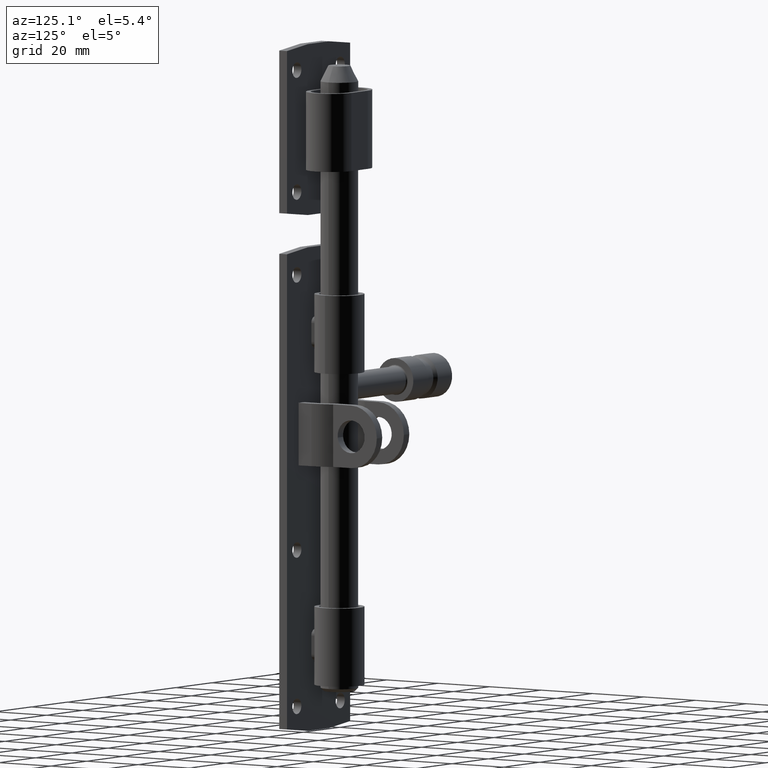
[diagram: clean part render]
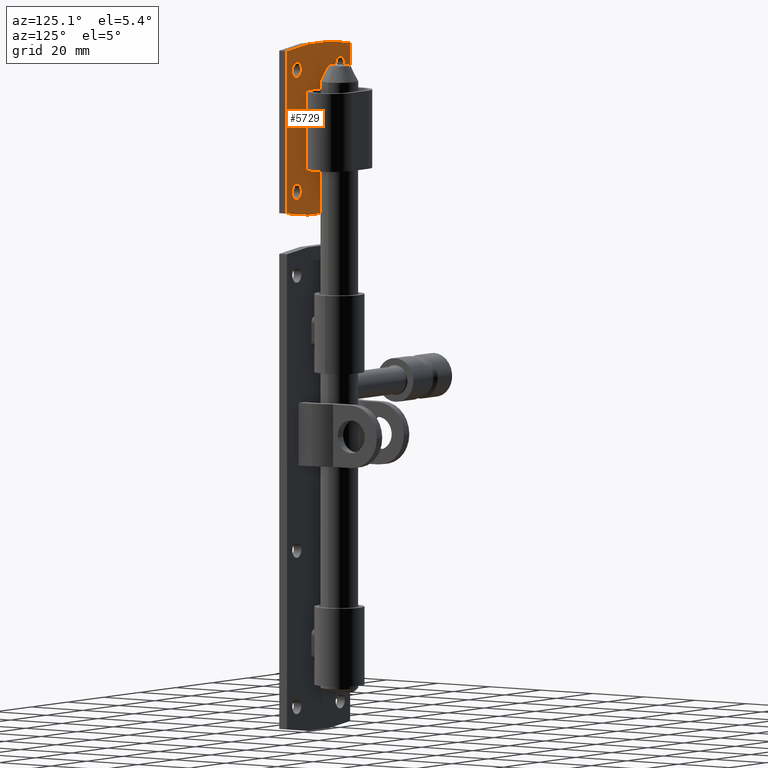
[diagram: same view with one face highlighted and labeled with its STEP entity id]
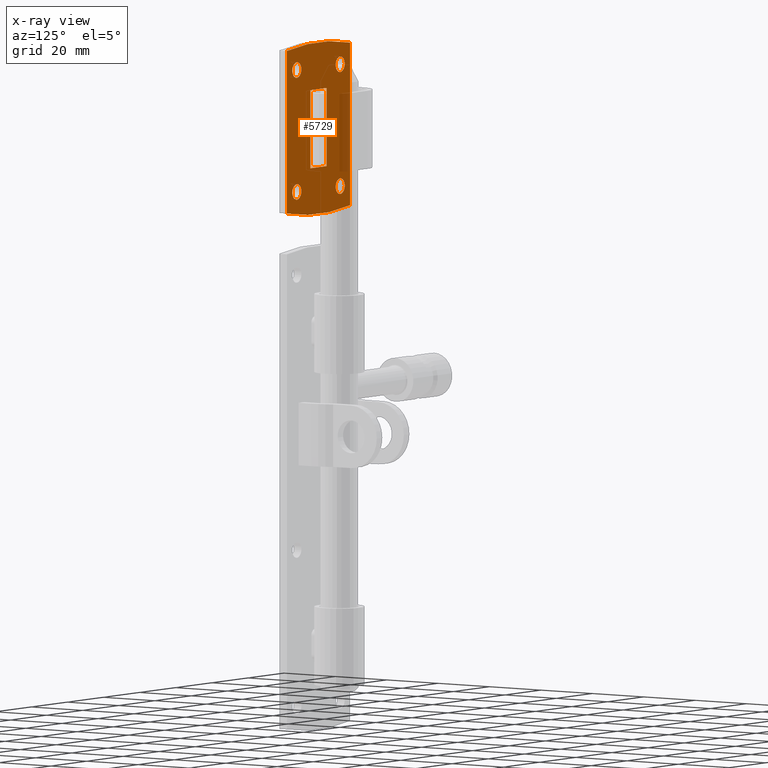
[diagram: x-ray of the same camera — body ghosted, the highlighted face saturated]
A machine part, auxiliary view. The second image highlights one B-rep face of the part: STEP entity #5729.
The next image is the same camera in x-ray: the body ghosted, the highlighted face saturated — about 9% of this face is hidden behind the body in this view.
In plain terms, the highlighted planar face has unit normal (0, 1, 0).
Its self-contained STEP definition (entity closure, byte-faithful):
#55 = LINE ( 'NONE', #9235, #5270 ) ;
#198 = CIRCLE ( 'NONE', #12664, 2.499999999999998668 ) ;
#412 = CIRCLE ( 'NONE', #959, 2.499999999999998668 ) ;
#470 = EDGE_CURVE ( 'NONE', #11358, #734, #3443, .T. ) ;
#541 = VECTOR ( 'NONE', #7025, 1000.000000000000000 ) ;
#582 = DIRECTION ( 'NONE',  ( 0.000000000000000000, 1.000000000000000000, 0.000000000000000000 ) ) ;
#620 = DIRECTION ( 'NONE',  ( -0.000000000000000000, -0.000000000000000000, 1.000000000000000000 ) ) ;
#703 = ORIENTED_EDGE ( 'NONE', *, *, #7101, .T. ) ;
#734 = VERTEX_POINT ( 'NONE', #4685 ) ;
#756 = VERTEX_POINT ( 'NONE', #1141 ) ;
#760 = CARTESIAN_POINT ( 'NONE',  ( 1.293649916984026240E-23, 3.000000000000000000, 75.33333333333378334 ) ) ;
#927 = FACE_OUTER_BOUND ( 'NONE', #3778, .T. ) ;
#930 = ORIENTED_EDGE ( 'NONE', *, *, #5429, .T. ) ;
#959 = AXIS2_PLACEMENT_3D ( 'NONE', #2879, #582, #8939 ) ;
#1005 = ORIENTED_EDGE ( 'NONE', *, *, #12646, .T. ) ;
#1127 = VERTEX_POINT ( 'NONE', #6780 ) ;
#1141 = CARTESIAN_POINT ( 'NONE',  ( 17.50000000000000000, 3.000000000000000000, 26.00000000000000355 ) ) ;
#1306 = FACE_BOUND ( 'NONE', #13496, .T. ) ;
#1493 = VERTEX_POINT ( 'NONE', #10224 ) ;
#1706 = VECTOR ( 'NONE', #620, 1000.000000000000000 ) ;
#1959 = EDGE_LOOP ( 'NONE', ( #703, #930, #10210, #7282 ) ) ;
#2009 = DIRECTION ( 'NONE',  ( 0.000000000000000000, 1.000000000000000000, 0.000000000000000000 ) ) ;
#2368 = EDGE_CURVE ( 'NONE', #756, #11358, #5472, .T. ) ;
#2510 = VERTEX_POINT ( 'NONE', #4077 ) ;
#2618 = ORIENTED_EDGE ( 'NONE', *, *, #14446, .F. ) ;
#2653 = VECTOR ( 'NONE', #8592, 1000.000000000000000 ) ;
#2740 = CARTESIAN_POINT ( 'NONE',  ( -17.50000000000000711, 3.000000000000000000, 25.99999999999999289 ) ) ;
#2815 = AXIS2_PLACEMENT_3D ( 'NONE', #760, #14934, #4259 ) ;
#2879 = CARTESIAN_POINT ( 'NONE',  ( 12.00000000000000533, 3.000000000000000000, 19.49999999999999645 ) ) ;
#3123 = EDGE_CURVE ( 'NONE', #14790, #3171, #55, .T. ) ;
#3171 = VERTEX_POINT ( 'NONE', #8514 ) ;
#3443 = CIRCLE ( 'NONE', #2815, 102.8333333333337691 ) ;
#3544 = CARTESIAN_POINT ( 'NONE',  ( -4.500000000000000888, 2.999999999999995559, 12.50000000000000000 ) ) ;
#3728 = VECTOR ( 'NONE', #5862, 1000.000000000000000 ) ;
#3778 = EDGE_LOOP ( 'NONE', ( #11028, #6084, #7305, #1005 ) ) ;
#4077 = CARTESIAN_POINT ( 'NONE',  ( -17.50000000000000711, 3.000000000000000000, 25.99999999999999289 ) ) ;
#4094 = FACE_BOUND ( 'NONE', #15298, .T. ) ;
#4098 = VERTEX_POINT ( 'NONE', #8999 ) ;
#4259 = DIRECTION ( 'NONE',  ( 0.000000000000000000, 0.000000000000000000, -1.000000000000000000 ) ) ;
#4374 = EDGE_CURVE ( 'NONE', #1493, #1493, #5632, .T. ) ;
#4423 = VERTEX_POINT ( 'NONE', #13186 ) ;
#4685 = CARTESIAN_POINT ( 'NONE',  ( -17.50000000000000711, 3.000000000000000000, -25.99999999999999289 ) ) ;
#4694 = AXIS2_PLACEMENT_3D ( 'NONE', #11875, #9586, #10726 ) ;
#4720 = CIRCLE ( 'NONE', #8078, 2.499999999999998668 ) ;
#4749 = EDGE_LOOP ( 'NONE', ( #5271 ) ) ;
#5270 = VECTOR ( 'NONE', #13973, 1000.000000000000000 ) ;
#5271 = ORIENTED_EDGE ( 'NONE', *, *, #12200, .F. ) ;
#5429 = EDGE_CURVE ( 'NONE', #11668, #3171, #7295, .T. ) ;
#5472 = LINE ( 'NONE', #13331, #2653 ) ;
#5632 = CIRCLE ( 'NONE', #4694, 2.499999999999998668 ) ;
#5665 = AXIS2_PLACEMENT_3D ( 'NONE', #10470, #13938, #11709 ) ;
#5729 = ADVANCED_FACE ( 'NONE', ( #10417, #11333, #8230, #1306, #4094, #927 ), #13844, .T. ) ;
#5862 = DIRECTION ( 'NONE',  ( 1.000000000000000000, 0.000000000000000000, 0.000000000000000000 ) ) ;
#6084 = ORIENTED_EDGE ( 'NONE', *, *, #2368, .T. ) ;
#6144 = DIRECTION ( 'NONE',  ( 0.000000000000000000, 1.000000000000000000, 0.000000000000000000 ) ) ;
#6646 = DIRECTION ( 'NONE',  ( 0.000000000000000000, 1.000000000000000000, 0.000000000000000000 ) ) ;
#6780 = CARTESIAN_POINT ( 'NONE',  ( 12.00000000000000533, 3.000000000000000000, 21.99999999999999645 ) ) ;
#7025 = DIRECTION ( 'NONE',  ( -0.000000000000000000, -0.000000000000000000, -1.000000000000000000 ) ) ;
#7082 = CARTESIAN_POINT ( 'NONE',  ( -4.500000000000000888, 2.999999999999995559, -12.50000000000000000 ) ) ;
#7101 = EDGE_CURVE ( 'NONE', #4423, #11668, #8235, .T. ) ;
#7282 = ORIENTED_EDGE ( 'NONE', *, *, #9234, .F. ) ;
#7295 = LINE ( 'NONE', #11799, #3728 ) ;
#7305 = ORIENTED_EDGE ( 'NONE', *, *, #470, .T. ) ;
#7341 = DIRECTION ( 'NONE',  ( 0.000000000000000000, 0.000000000000000000, 1.000000000000000000 ) ) ;
#7597 = ORIENTED_EDGE ( 'NONE', *, *, #11234, .F. ) ;
#7843 = CARTESIAN_POINT ( 'NONE',  ( 17.50000000000001421, 3.000000000000000000, -25.99999999999998224 ) ) ;
#7909 = CARTESIAN_POINT ( 'NONE',  ( 1.293649916984065325E-23, 3.000000000000000000, -75.33333333333378334 ) ) ;
#8073 = DIRECTION ( 'NONE',  ( 0.000000000000000000, -0.000000000000000000, 1.000000000000000000 ) ) ;
#8078 = AXIS2_PLACEMENT_3D ( 'NONE', #13235, #6144, #7341 ) ;
#8136 = LINE ( 'NONE', #11007, #13833 ) ;
#8230 = FACE_BOUND ( 'NONE', #8694, .T. ) ;
#8235 = LINE ( 'NONE', #3544, #541 ) ;
#8455 = LINE ( 'NONE', #2740, #1706 ) ;
#8514 = CARTESIAN_POINT ( 'NONE',  ( 4.499999999999999112, 2.999999999999995559, -12.50000000000000000 ) ) ;
#8592 = DIRECTION ( 'NONE',  ( -0.000000000000000000, -0.000000000000000000, -1.000000000000000000 ) ) ;
#8694 = EDGE_LOOP ( 'NONE', ( #2618 ) ) ;
#8939 = DIRECTION ( 'NONE',  ( 0.000000000000000000, 0.000000000000000000, 1.000000000000000000 ) ) ;
#8999 = CARTESIAN_POINT ( 'NONE',  ( -12.00000000000000178, 3.000000000000000000, -17.00000000000000000 ) ) ;
#9120 = EDGE_CURVE ( 'NONE', #2510, #756, #14671, .T. ) ;
#9234 = EDGE_CURVE ( 'NONE', #4423, #14790, #8136, .T. ) ;
#9235 = CARTESIAN_POINT ( 'NONE',  ( 4.499999999999999112, 2.999999999999995559, 12.50000000000000000 ) ) ;
#9586 = DIRECTION ( 'NONE',  ( 0.000000000000000000, 1.000000000000000000, 0.000000000000000000 ) ) ;
#9876 = AXIS2_PLACEMENT_3D ( 'NONE', #7909, #2009, #8073 ) ;
#10210 = ORIENTED_EDGE ( 'NONE', *, *, #3123, .F. ) ;
#10224 = CARTESIAN_POINT ( 'NONE',  ( -11.99999999999999645, 3.000000000000000000, 22.00000000000000000 ) ) ;
#10243 = CARTESIAN_POINT ( 'NONE',  ( 11.99999999999999822, 3.000000000000000000, -19.50000000000000355 ) ) ;
#10343 = DIRECTION ( 'NONE',  ( 0.000000000000000000, 0.000000000000000000, 1.000000000000000000 ) ) ;
#10417 = FACE_BOUND ( 'NONE', #1959, .T. ) ;
#10470 = CARTESIAN_POINT ( 'NONE',  ( 1.293649916984065325E-23, 3.000000000000000000, -75.33333333333378334 ) ) ;
#10726 = DIRECTION ( 'NONE',  ( 0.000000000000000000, 0.000000000000000000, 1.000000000000000000 ) ) ;
#11007 = CARTESIAN_POINT ( 'NONE',  ( -4.500000000000000888, 2.999999999999995559, 12.50000000000000000 ) ) ;
#11028 = ORIENTED_EDGE ( 'NONE', *, *, #9120, .T. ) ;
#11234 = EDGE_CURVE ( 'NONE', #1127, #1127, #412, .T. ) ;
#11333 = FACE_BOUND ( 'NONE', #4749, .T. ) ;
#11358 = VERTEX_POINT ( 'NONE', #7843 ) ;
#11668 = VERTEX_POINT ( 'NONE', #7082 ) ;
#11709 = DIRECTION ( 'NONE',  ( 0.000000000000000000, 0.000000000000000000, 1.000000000000000000 ) ) ;
#11799 = CARTESIAN_POINT ( 'NONE',  ( -4.500000000000000888, 2.999999999999995559, -12.50000000000000000 ) ) ;
#11875 = CARTESIAN_POINT ( 'NONE',  ( -11.99999999999999645, 3.000000000000000000, 19.50000000000000000 ) ) ;
#11911 = ORIENTED_EDGE ( 'NONE', *, *, #4374, .F. ) ;
#12190 = DIRECTION ( 'NONE',  ( 1.000000000000000000, 0.000000000000000000, 0.000000000000000000 ) ) ;
#12200 = EDGE_CURVE ( 'NONE', #4098, #4098, #4720, .T. ) ;
#12449 = VERTEX_POINT ( 'NONE', #13790 ) ;
#12646 = EDGE_CURVE ( 'NONE', #734, #2510, #8455, .T. ) ;
#12664 = AXIS2_PLACEMENT_3D ( 'NONE', #10243, #6646, #10343 ) ;
#13186 = CARTESIAN_POINT ( 'NONE',  ( -4.500000000000000888, 2.999999999999995559, 12.50000000000000000 ) ) ;
#13235 = CARTESIAN_POINT ( 'NONE',  ( -12.00000000000000178, 3.000000000000000000, -19.50000000000000000 ) ) ;
#13331 = CARTESIAN_POINT ( 'NONE',  ( 17.50000000000000000, 3.000000000000000000, -26.00000000000000000 ) ) ;
#13496 = EDGE_LOOP ( 'NONE', ( #7597 ) ) ;
#13790 = CARTESIAN_POINT ( 'NONE',  ( 11.99999999999999822, 3.000000000000000000, -17.00000000000000355 ) ) ;
#13833 = VECTOR ( 'NONE', #12190, 1000.000000000000000 ) ;
#13844 = PLANE ( 'NONE',  #9876 ) ;
#13938 = DIRECTION ( 'NONE',  ( 0.000000000000000000, 1.000000000000000000, 0.000000000000000000 ) ) ;
#13973 = DIRECTION ( 'NONE',  ( -0.000000000000000000, -0.000000000000000000, -1.000000000000000000 ) ) ;
#13991 = CARTESIAN_POINT ( 'NONE',  ( 4.500000000000000888, 2.999999999999997335, 12.50000000000000000 ) ) ;
#14446 = EDGE_CURVE ( 'NONE', #12449, #12449, #198, .T. ) ;
#14671 = CIRCLE ( 'NONE', #5665, 102.8333333333337691 ) ;
#14790 = VERTEX_POINT ( 'NONE', #13991 ) ;
#14934 = DIRECTION ( 'NONE',  ( 0.000000000000000000, 1.000000000000000000, -0.000000000000000000 ) ) ;
#15298 = EDGE_LOOP ( 'NONE', ( #11911 ) ) ;